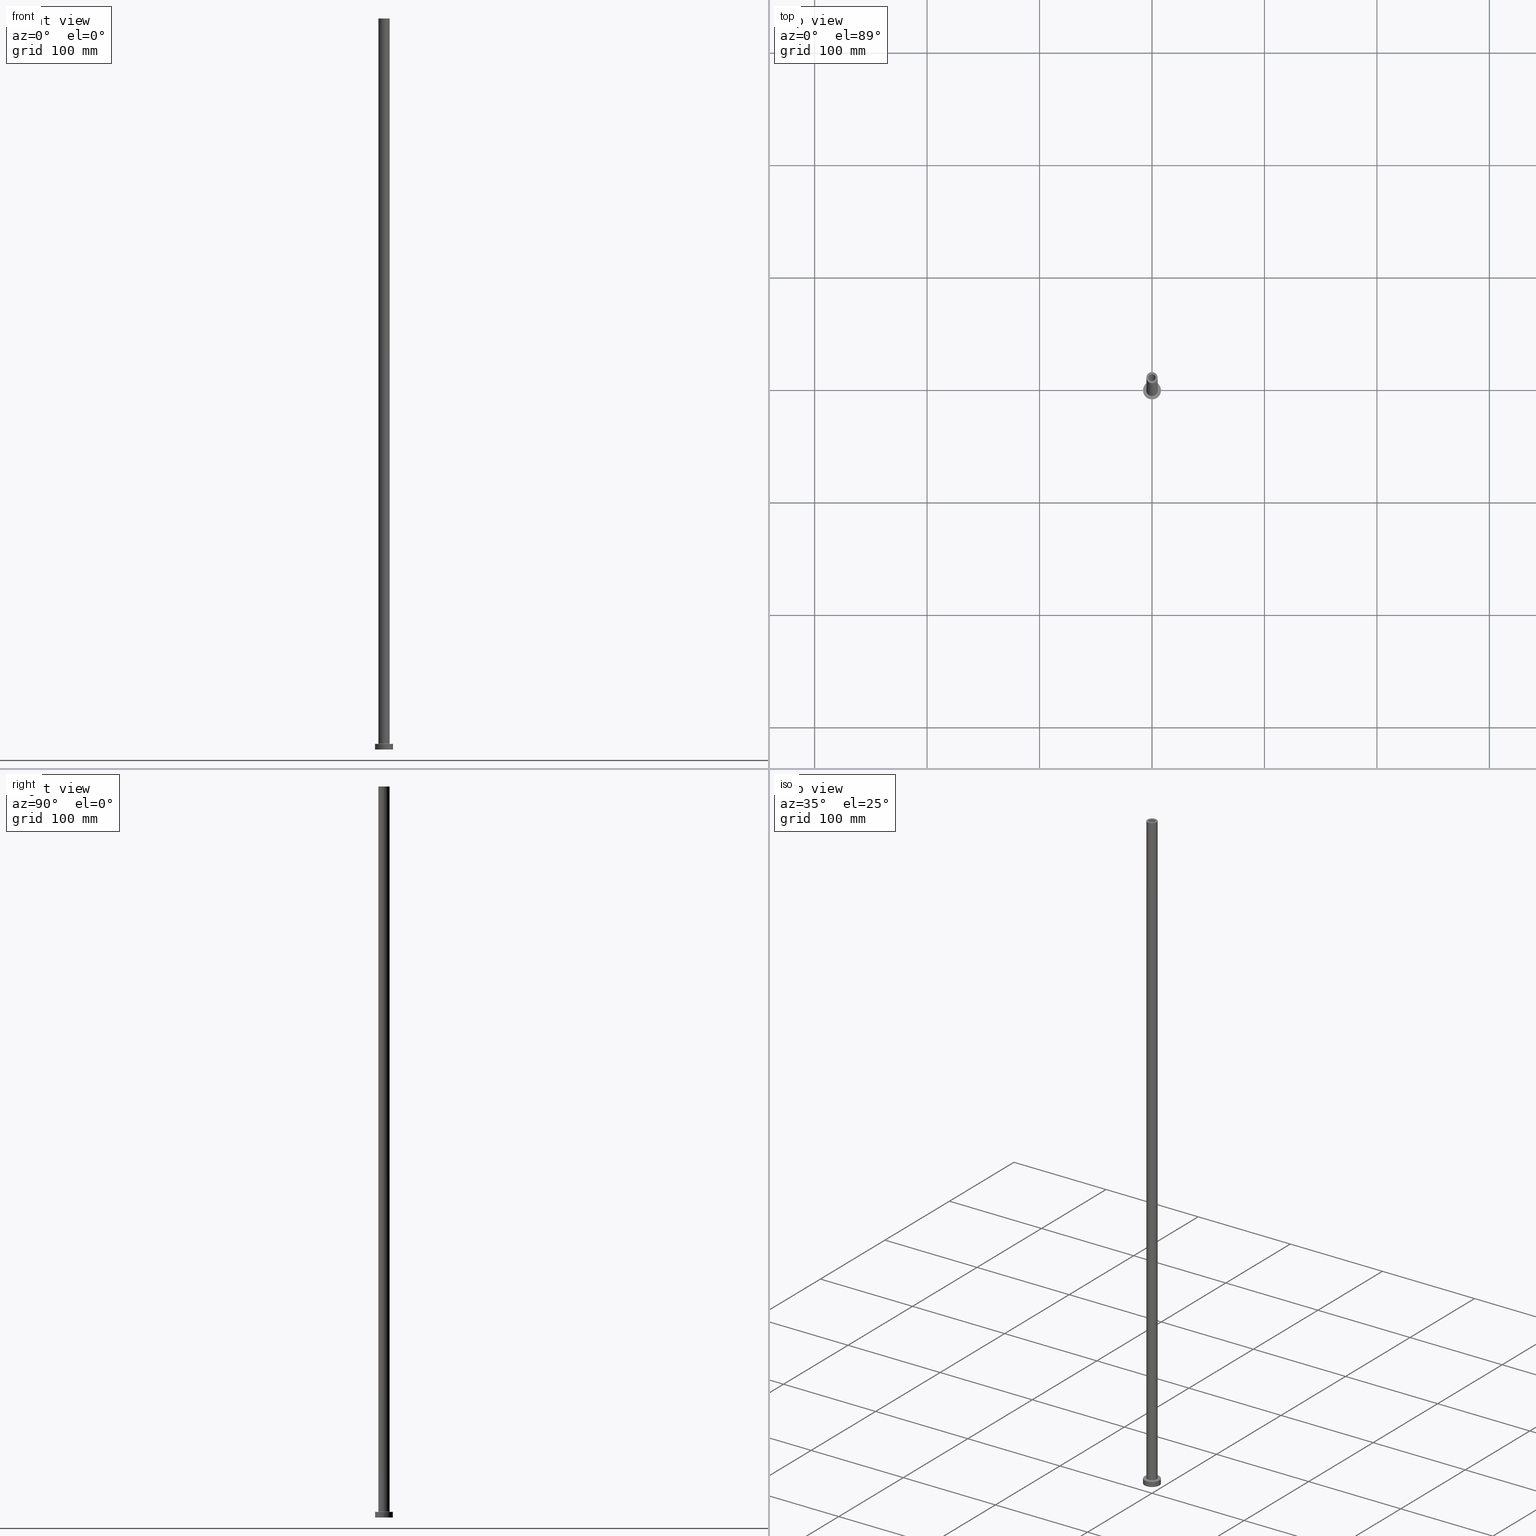
[diagram: canonical four-view strip — front | top / right | iso, engineering-drawing reading convention]
A machine part, canonical four-view strip (front | top / right | iso — engineering-drawing reading convention). The complete STEP part file that produces these views, byte-faithful:
ISO-10303-21;
HEADER;
FILE_DESCRIPTION (( 'STEP AP203' ),
    '1' );
FILE_NAME ('61a7.STEP',
    '2023-02-13T14:29:30',
    ( '' ),
    ( '' ),
    'SwSTEP 2.0',
    'SolidWorks 2019',
    '' );
FILE_SCHEMA (( 'CONFIG_CONTROL_DESIGN' ));
ENDSEC;

DATA;
#1 = DIRECTION ( 'NONE',  ( 0.000000000000000000, 0.000000000000000000, 1.000000000000000000 ) ) ;
#2 = EDGE_LOOP ( 'NONE', ( #14, #389, #76, #284 ) ) ;
#3 = DIRECTION ( 'NONE',  ( 0.000000000000000000, 0.000000000000000000, -1.000000000000000000 ) ) ;
#4 = PERSON_AND_ORGANIZATION_ROLE ( 'classification_officer' ) ;
#5 = CARTESIAN_POINT ( 'NONE',  ( -5.500000000000000000, 6.735557395310442023E-16, 5.499999999999949374 ) ) ;
#6 = AXIS2_PLACEMENT_3D ( 'NONE', #319, #459, #45 ) ;
#7 = CYLINDRICAL_SURFACE ( 'NONE', #134, 3.100000000000000089 ) ;
#8 = VECTOR ( 'NONE', #396, 1000.000000000000000 ) ;
#9 = DIRECTION ( 'NONE',  ( -0.000000000000000000, -0.000000000000000000, -1.000000000000000000 ) ) ;
#10 = ORIENTED_EDGE ( 'NONE', *, *, #185, .F. ) ;
#11 = EDGE_CURVE ( 'NONE', #175, #40, #57, .T. ) ;
#12 = CARTESIAN_POINT ( 'NONE',  ( 0.000000000000000000, 0.000000000000000000, 605.0000000000000000 ) ) ;
#13 = EDGE_CURVE ( 'NONE', #309, #63, #413, .T. ) ;
#14 = ORIENTED_EDGE ( 'NONE', *, *, #41, .F. ) ;
#15 = PRODUCT ( '61a7', '61a7', '', ( #38 ) ) ;
#16 = CARTESIAN_POINT ( 'NONE',  ( 0.000000000000000000, 0.000000000000000000, 5.499999999999949374 ) ) ;
#17 = AXIS2_PLACEMENT_3D ( 'NONE', #112, #296, #397 ) ;
#18 = CC_DESIGN_PERSON_AND_ORGANIZATION_ASSIGNMENT ( #173, #136, ( #73 ) ) ;
#19 = AXIS2_PLACEMENT_3D ( 'NONE', #251, #1, #137 ) ;
#20 = DIRECTION ( 'NONE',  ( 0.000000000000000000, 0.000000000000000000, -1.000000000000000000 ) ) ;
#21 = CC_DESIGN_DATE_AND_TIME_ASSIGNMENT ( #75, #222, ( #95 ) ) ;
#22 = FACE_OUTER_BOUND ( 'NONE', #188, .T. ) ;
#23 = CARTESIAN_POINT ( 'NONE',  ( 0.000000000000000000, 0.000000000000000000, 5.000000000000000000 ) ) ;
#24 = FACE_BOUND ( 'NONE', #64, .T. ) ;
#25 = AXIS2_PLACEMENT_3D ( 'NONE', #5, #370, #437 ) ;
#26 = VERTEX_POINT ( 'NONE', #227 ) ;
#27 = UNCERTAINTY_MEASURE_WITH_UNIT (LENGTH_MEASURE( 1.000000000000000082E-05 ), #108, 'distance_accuracy_value', 'NONE');
#28 = DIRECTION ( 'NONE',  ( 0.000000000000000000, 0.000000000000000000, -1.000000000000000000 ) ) ;
#29 = ORIENTED_EDGE ( 'NONE', *, *, #132, .F. ) ;
#30 = APPLICATION_PROTOCOL_DEFINITION ( 'international standard', 'config_control_design', 1994, #178 ) ;
#31 = VERTEX_POINT ( 'NONE', #118 ) ;
#32 = PERSON_AND_ORGANIZATION ( #306, #236 ) ;
#33 = EDGE_CURVE ( 'NONE', #26, #53, #400, .T. ) ;
#34 = CIRCLE ( 'NONE', #141, 3.100000000000000089 ) ;
#35 = AXIS2_PLACEMENT_3D ( 'NONE', #208, #352, #388 ) ;
#36 = LINE ( 'NONE', #110, #8 ) ;
#37 = EDGE_LOOP ( 'NONE', ( #385, #291 ) ) ;
#38 = MECHANICAL_CONTEXT ( 'NONE', #322, 'mechanical' ) ;
#39 = DIRECTION ( 'NONE',  ( -1.000000000000000000, 0.000000000000000000, 0.000000000000000000 ) ) ;
#40 = VERTEX_POINT ( 'NONE', #409 ) ;
#41 = EDGE_CURVE ( 'NONE', #26, #209, #252, .T. ) ;
#42 = PERSON_AND_ORGANIZATION ( #306, #236 ) ;
#43 = VERTEX_POINT ( 'NONE', #91 ) ;
#44 = CLOSED_SHELL ( 'NONE', ( #267, #460, #398, #78, #234, #101, #74, #181, #149, #449, #371, #335, #182, #211 ) ) ;
#45 = DIRECTION ( 'NONE',  ( -1.000000000000000000, 0.000000000000000000, 0.000000000000000000 ) ) ;
#46 = APPROVAL_STATUS ( 'not_yet_approved' ) ;
#47 = DIRECTION ( 'NONE',  ( 1.000000000000000000, 0.000000000000000000, 0.000000000000000000 ) ) ;
#48 = DATE_AND_TIME ( #151, #351 ) ;
#49 = ORIENTED_EDGE ( 'NONE', *, *, #87, .F. ) ;
#50 = CARTESIAN_POINT ( 'NONE',  ( 0.000000000000000000, 0.000000000000000000, 605.0000000000000000 ) ) ;
#51 = CIRCLE ( 'NONE', #169, 3.250000000000000444 ) ;
#52 = DIRECTION ( 'NONE',  ( 0.000000000000000000, 0.000000000000000000, 1.000000000000000000 ) ) ;
#53 = VERTEX_POINT ( 'NONE', #221 ) ;
#54 = CC_DESIGN_PERSON_AND_ORGANIZATION_ASSIGNMENT ( #113, #458, ( #454 ) ) ;
#55 = CARTESIAN_POINT ( 'NONE',  ( 0.000000000000000000, 0.000000000000000000, 605.0000000000000000 ) ) ;
#56 = EDGE_CURVE ( 'NONE', #40, #175, #189, .T. ) ;
#57 = CIRCLE ( 'NONE', #17, 5.000000000000000000 ) ;
#58 = DIRECTION ( 'NONE',  ( 0.000000000000000000, 0.000000000000000000, 1.000000000000000000 ) ) ;
#59 = DIRECTION ( 'NONE',  ( -0.000000000000000000, -0.000000000000000000, -1.000000000000000000 ) ) ;
#60 = DIRECTION ( 'NONE',  ( 0.000000000000000000, 0.000000000000000000, 1.000000000000000000 ) ) ;
#61 = AXIS2_PLACEMENT_3D ( 'NONE', #363, #9, #156 ) ;
#62 = LINE ( 'NONE', #346, #419 ) ;
#63 = VERTEX_POINT ( 'NONE', #184 ) ;
#64 = EDGE_LOOP ( 'NONE', ( #276, #280 ) ) ;
#65 = APPROVAL_ROLE ( '' ) ;
#66 = ORIENTED_EDGE ( 'NONE', *, *, #233, .T. ) ;
#67 =( NAMED_UNIT ( * ) SI_UNIT ( $, .STERADIAN. ) SOLID_ANGLE_UNIT ( ) );
#68 = CIRCLE ( 'NONE', #358, 8.000000000000000000 ) ;
#69 = LOCAL_TIME ( 15, 29, 30.00000000000000000, #259 ) ;
#70 = PLANE ( 'NONE',  #274 ) ;
#71 = ORIENTED_EDGE ( 'NONE', *, *, #201, .T. ) ;
#72 = PERSON_AND_ORGANIZATION ( #306, #236 ) ;
#73 = PRODUCT_DEFINITION ( 'NEZN�M�', '', #454, #307 ) ;
#74 = ADVANCED_FACE ( 'NONE', ( #24, #297 ), #266, .T. ) ;
#75 = DATE_AND_TIME ( #247, #402 ) ;
#76 = ORIENTED_EDGE ( 'NONE', *, *, #87, .T. ) ;
#77 = APPROVAL_STATUS ( 'not_yet_approved' ) ;
#78 = ADVANCED_FACE ( 'NONE', ( #230 ), #338, .T. ) ;
#79 = CARTESIAN_POINT ( 'NONE',  ( 0.000000000000000000, 0.000000000000000000, 5.000000000000000000 ) ) ;
#80 = CYLINDRICAL_SURFACE ( 'NONE', #299, 3.250000000000000444 ) ;
#81 = ORIENTED_EDGE ( 'NONE', *, *, #100, .T. ) ;
#82 = APPROVAL_PERSON_ORGANIZATION ( #106, #232, #65 ) ;
#83 = CARTESIAN_POINT ( 'NONE',  ( 0.000000000000000000, 0.000000000000000000, 650.0000000000000000 ) ) ;
#84 = VERTEX_POINT ( 'NONE', #97 ) ;
#85 = EDGE_CURVE ( 'NONE', #283, #43, #300, .T. ) ;
#86 = ORIENTED_EDGE ( 'NONE', *, *, #150, .F. ) ;
#87 = EDGE_CURVE ( 'NONE', #53, #139, #199, .T. ) ;
#88 = DIRECTION ( 'NONE',  ( 1.000000000000000000, 0.000000000000000000, 0.000000000000000000 ) ) ;
#89 = ORIENTED_EDGE ( 'NONE', *, *, #298, .F. ) ;
#90 = AXIS2_PLACEMENT_3D ( 'NONE', #368, #52, #438 ) ;
#91 = CARTESIAN_POINT ( 'NONE',  ( -8.000000000000000000, 0.000000000000000000, 0.000000000000000000 ) ) ;
#92 = DIRECTION ( 'NONE',  ( 0.000000000000000000, 0.000000000000000000, 1.000000000000000000 ) ) ;
#93 = CARTESIAN_POINT ( 'NONE',  ( -8.000000000000000000, 0.000000000000000000, 5.000000000000000000 ) ) ;
#94 = AXIS2_PLACEMENT_3D ( 'NONE', #303, #447, #165 ) ;
#95 = SECURITY_CLASSIFICATION ( '', '', #111 ) ;
#96 = DIRECTION ( 'NONE',  ( -0.000000000000000000, -0.000000000000000000, -1.000000000000000000 ) ) ;
#97 = CARTESIAN_POINT ( 'NONE',  ( 5.000000000000000000, 6.123233995736765296E-16, 5.499999999999949374 ) ) ;
#98 = TOROIDAL_SURFACE ( 'NONE', #19, 5.500000000000000000, 0.5000000000000000000 ) ;
#99 = ORIENTED_EDGE ( 'NONE', *, *, #185, .T. ) ;
#100 = EDGE_CURVE ( 'NONE', #349, #31, #272, .T. ) ;
#101 = ADVANCED_FACE ( 'NONE', ( #238 ), #416, .T. ) ;
#102 = ORIENTED_EDGE ( 'NONE', *, *, #210, .F. ) ;
#103 = DATE_AND_TIME ( #422, #445 ) ;
#104 = ORIENTED_EDGE ( 'NONE', *, *, #392, .T. ) ;
#105 = VECTOR ( 'NONE', #96, 1000.000000000000000 ) ;
#106 = PERSON_AND_ORGANIZATION ( #306, #236 ) ;
#107 = AXIS2_PLACEMENT_3D ( 'NONE', #271, #342, #450 ) ;
#108 =( LENGTH_UNIT ( ) NAMED_UNIT ( * ) SI_UNIT ( .MILLI., .METRE. ) );
#109 = ORIENTED_EDGE ( 'NONE', *, *, #176, .F. ) ;
#110 = CARTESIAN_POINT ( 'NONE',  ( -3.250000000000000444, 0.000000000000000000, 614.1923881554251921 ) ) ;
#111 = SECURITY_CLASSIFICATION_LEVEL ( 'unclassified' ) ;
#112 = CARTESIAN_POINT ( 'NONE',  ( 0.000000000000000000, 0.000000000000000000, 650.0000000000000000 ) ) ;
#113 = PERSON_AND_ORGANIZATION ( #306, #236 ) ;
#114 = ORIENTED_EDGE ( 'NONE', *, *, #392, .F. ) ;
#115 = VECTOR ( 'NONE', #375, 1000.000000000000000 ) ;
#116 = CC_DESIGN_APPROVAL ( #399, ( #95 ) ) ;
#117 = FACE_OUTER_BOUND ( 'NONE', #407, .T. ) ;
#118 = CARTESIAN_POINT ( 'NONE',  ( 8.000000000000000000, 9.797174393178825657E-16, 0.000000000000000000 ) ) ;
#119 = FACE_OUTER_BOUND ( 'NONE', #223, .T. ) ;
#120 = CARTESIAN_POINT ( 'NONE',  ( 0.000000000000000000, 0.000000000000000000, 0.000000000000000000 ) ) ;
#121 = ORIENTED_EDGE ( 'NONE', *, *, #233, .F. ) ;
#122 = DIRECTION ( 'NONE',  ( 0.000000000000000000, 0.000000000000000000, -1.000000000000000000 ) ) ;
#123 = CIRCLE ( 'NONE', #61, 5.500000000000000000 ) ;
#124 = CC_DESIGN_APPROVAL ( #282, ( #73 ) ) ;
#125 = DIRECTION ( 'NONE',  ( -0.000000000000000000, -0.000000000000000000, -1.000000000000000000 ) ) ;
#126 = DIRECTION ( 'NONE',  ( -1.000000000000000000, 0.000000000000000000, 0.000000000000000000 ) ) ;
#127 = FACE_OUTER_BOUND ( 'NONE', #255, .T. ) ;
#128 = CARTESIAN_POINT ( 'NONE',  ( 0.000000000000000000, 0.000000000000000000, 5.499999999999949374 ) ) ;
#129 = AXIS2_PLACEMENT_3D ( 'NONE', #441, #408, #229 ) ;
#130 = DIRECTION ( 'NONE',  ( 1.000000000000000000, 0.000000000000000000, 0.000000000000000000 ) ) ;
#131 = ORIENTED_EDGE ( 'NONE', *, *, #249, .T. ) ;
#132 = EDGE_CURVE ( 'NONE', #349, #283, #68, .T. ) ;
#133 = PLANE ( 'NONE',  #207 ) ;
#134 = AXIS2_PLACEMENT_3D ( 'NONE', #83, #226, #155 ) ;
#135 = ORIENTED_EDGE ( 'NONE', *, *, #278, .T. ) ;
#136 = PERSON_AND_ORGANIZATION_ROLE ( 'creator' ) ;
#137 = DIRECTION ( 'NONE',  ( 1.000000000000000000, 0.000000000000000000, 0.000000000000000000 ) ) ;
#138 = ORIENTED_EDGE ( 'NONE', *, *, #364, .T. ) ;
#139 = VERTEX_POINT ( 'NONE', #268 ) ;
#140 =( NAMED_UNIT ( * ) PLANE_ANGLE_UNIT ( ) SI_UNIT ( $, .RADIAN. ) );
#141 = AXIS2_PLACEMENT_3D ( 'NONE', #55, #197, #166 ) ;
#142 = VECTOR ( 'NONE', #28, 1000.000000000000000 ) ;
#143 = PERSON_AND_ORGANIZATION ( #306, #236 ) ;
#144 = ORIENTED_EDGE ( 'NONE', *, *, #298, .T. ) ;
#145 = DIRECTION ( 'NONE',  ( 0.000000000000000000, 0.000000000000000000, 1.000000000000000000 ) ) ;
#146 = CARTESIAN_POINT ( 'NONE',  ( 5.500000000000000000, 0.000000000000000000, 4.999999999999975131 ) ) ;
#147 = ORIENTED_EDGE ( 'NONE', *, *, #417, .T. ) ;
#148 = APPROVAL_DATE_TIME ( #362, #232 ) ;
#149 = ADVANCED_FACE ( 'NONE', ( #127 ), #194, .T. ) ;
#150 = EDGE_CURVE ( 'NONE', #139, #209, #34, .T. ) ;
#151 = CALENDAR_DATE ( 2023, 13, 2 ) ;
#152 = ORIENTED_EDGE ( 'NONE', *, *, #249, .F. ) ;
#153 = CIRCLE ( 'NONE', #220, 5.500000000000000000 ) ;
#154 = APPROVAL_PERSON_ORGANIZATION ( #32, #282, #316 ) ;
#155 = DIRECTION ( 'NONE',  ( -1.000000000000000000, 0.000000000000000000, 0.000000000000000000 ) ) ;
#156 = DIRECTION ( 'NONE',  ( 1.000000000000000000, 0.000000000000000000, 0.000000000000000000 ) ) ;
#157 = ORIENTED_EDGE ( 'NONE', *, *, #347, .T. ) ;
#158 = DIRECTION ( 'NONE',  ( 1.000000000000000000, 0.000000000000000000, 0.000000000000000000 ) ) ;
#159 = DIRECTION ( 'NONE',  ( 0.000000000000000000, 0.000000000000000000, 1.000000000000000000 ) ) ;
#160 = ORIENTED_EDGE ( 'NONE', *, *, #294, .T. ) ;
#161 = CARTESIAN_POINT ( 'NONE',  ( 5.500000000000000000, 0.000000000000000000, 5.499999999999949374 ) ) ;
#162 = DIRECTION ( 'NONE',  ( 0.000000000000000000, 0.000000000000000000, 1.000000000000000000 ) ) ;
#163 = AXIS2_PLACEMENT_3D ( 'NONE', #50, #250, #218 ) ;
#164 = CIRCLE ( 'NONE', #172, 3.100000000000000089 ) ;
#165 = DIRECTION ( 'NONE',  ( -1.000000000000000000, 0.000000000000000000, 0.000000000000000000 ) ) ;
#166 = DIRECTION ( 'NONE',  ( 1.000000000000000000, 0.000000000000000000, 0.000000000000000000 ) ) ;
#167 = DIRECTION ( 'NONE',  ( 1.000000000000000000, 0.000000000000000000, 0.000000000000000000 ) ) ;
#168 = CARTESIAN_POINT ( 'NONE',  ( 0.000000000000000000, 0.000000000000000000, 5.000000000000000000 ) ) ;
#169 = AXIS2_PLACEMENT_3D ( 'NONE', #254, #401, #256 ) ;
#170 = ORIENTED_EDGE ( 'NONE', *, *, #13, .T. ) ;
#171 = ORIENTED_EDGE ( 'NONE', *, *, #56, .T. ) ;
#172 = AXIS2_PLACEMENT_3D ( 'NONE', #302, #60, #130 ) ;
#173 = PERSON_AND_ORGANIZATION ( #306, #236 ) ;
#174 = FACE_BOUND ( 'NONE', #394, .T. ) ;
#175 = VERTEX_POINT ( 'NONE', #301 ) ;
#176 = EDGE_CURVE ( 'NONE', #175, #309, #269, .T. ) ;
#177 = ORIENTED_EDGE ( 'NONE', *, *, #430, .F. ) ;
#178 = APPLICATION_CONTEXT ( 'configuration controlled 3d designs of mechanical parts and assemblies' ) ;
#179 = AXIS2_PLACEMENT_3D ( 'NONE', #12, #293, #359 ) ;
#180 = ORIENTED_EDGE ( 'NONE', *, *, #343, .F. ) ;
#181 = ADVANCED_FACE ( 'NONE', ( #237, #378 ), #133, .F. ) ;
#182 = ADVANCED_FACE ( 'NONE', ( #288, #260 ), #333, .F. ) ;
#183 = APPROVAL_ROLE ( '' ) ;
#184 = CARTESIAN_POINT ( 'NONE',  ( -5.500000000000000000, 6.735557395310442023E-16, 4.999999999999975131 ) ) ;
#185 = EDGE_CURVE ( 'NONE', #328, #323, #51, .T. ) ;
#186 = ORIENTED_EDGE ( 'NONE', *, *, #219, .T. ) ;
#187 = DIRECTION ( 'NONE',  ( 1.000000000000000000, 0.000000000000000000, 0.000000000000000000 ) ) ;
#188 = EDGE_LOOP ( 'NONE', ( #262, #131, #193, #241 ) ) ;
#189 = CIRCLE ( 'NONE', #312, 5.000000000000000000 ) ;
#190 = CIRCLE ( 'NONE', #107, 3.250000000000000444 ) ;
#191 = DIRECTION ( 'NONE',  ( 1.000000000000000000, 0.000000000000000000, -0.000000000000000000 ) ) ;
#192 = CARTESIAN_POINT ( 'NONE',  ( 0.000000000000000000, 0.000000000000000000, 605.0000000000000000 ) ) ;
#193 = ORIENTED_EDGE ( 'NONE', *, *, #430, .T. ) ;
#194 = CYLINDRICAL_SURFACE ( 'NONE', #202, 5.000000000000000000 ) ;
#195 = CARTESIAN_POINT ( 'NONE',  ( -8.000000000000000000, 0.000000000000000000, 5.000000000000000000 ) ) ;
#196 = MANIFOLD_SOLID_BREP ( 'Odebrat vysunut�m4', #44 ) ;
#197 = DIRECTION ( 'NONE',  ( 0.000000000000000000, 0.000000000000000000, 1.000000000000000000 ) ) ;
#198 = CIRCLE ( 'NONE', #90, 3.100000000000000089 ) ;
#199 = LINE ( 'NONE', #340, #448 ) ;
#200 = DIRECTION ( 'NONE',  ( 1.000000000000000000, 0.000000000000000000, 0.000000000000000000 ) ) ;
#201 = EDGE_CURVE ( 'NONE', #283, #349, #418, .T. ) ;
#202 = AXIS2_PLACEMENT_3D ( 'NONE', #411, #446, #126 ) ;
#203 = CARTESIAN_POINT ( 'NONE',  ( 3.250000000000000444, 3.980102097228898231E-16, 614.1923881554251921 ) ) ;
#204 = ORIENTED_EDGE ( 'NONE', *, *, #201, .F. ) ;
#205 = VERTEX_POINT ( 'NONE', #427 ) ;
#206 = DIRECTION ( 'NONE',  ( 0.000000000000000000, 0.000000000000000000, 1.000000000000000000 ) ) ;
#207 = AXIS2_PLACEMENT_3D ( 'NONE', #348, #159, #191 ) ;
#208 = CARTESIAN_POINT ( 'NONE',  ( 0.000000000000000000, 0.000000000000000000, 5.499999999999949374 ) ) ;
#209 = VERTEX_POINT ( 'NONE', #393 ) ;
#210 = EDGE_CURVE ( 'NONE', #429, #63, #153, .T. ) ;
#211 = ADVANCED_FACE ( 'NONE', ( #246 ), #7, .F. ) ;
#212 = DIRECTION ( 'NONE',  ( 0.000000000000000000, 0.000000000000000000, 1.000000000000000000 ) ) ;
#213 = ORIENTED_EDGE ( 'NONE', *, *, #132, .T. ) ;
#214 = APPROVAL_STATUS ( 'not_yet_approved' ) ;
#215 = DIRECTION ( 'NONE',  ( 0.000000000000000000, 0.000000000000000000, -1.000000000000000000 ) ) ;
#216 = PERSON_AND_ORGANIZATION_ROLE ( 'design_owner' ) ;
#217 = CC_DESIGN_PERSON_AND_ORGANIZATION_ASSIGNMENT ( #72, #216, ( #15 ) ) ;
#218 = DIRECTION ( 'NONE',  ( 1.000000000000000000, 0.000000000000000000, -0.000000000000000000 ) ) ;
#219 = EDGE_CURVE ( 'NONE', #205, #451, #339, .T. ) ;
#220 = AXIS2_PLACEMENT_3D ( 'NONE', #79, #329, #88 ) ;
#221 = CARTESIAN_POINT ( 'NONE',  ( -3.100000000000000089, 0.000000000000000000, 650.0000000000000000 ) ) ;
#222 = DATE_TIME_ROLE ( 'classification_date' ) ;
#223 = EDGE_LOOP ( 'NONE', ( #29, #81, #160, #424 ) ) ;
#224 = SHAPE_DEFINITION_REPRESENTATION ( #265, #373 ) ;
#225 = CARTESIAN_POINT ( 'NONE',  ( 3.100000000000000089, 3.796405077356794918E-16, 650.0000000000000000 ) ) ;
#226 = DIRECTION ( 'NONE',  ( 0.000000000000000000, 0.000000000000000000, -1.000000000000000000 ) ) ;
#227 = CARTESIAN_POINT ( 'NONE',  ( 3.100000000000000089, 3.796405077356794918E-16, 650.0000000000000000 ) ) ;
#228 = AXIS2_PLACEMENT_3D ( 'NONE', #192, #289, #435 ) ;
#229 = DIRECTION ( 'NONE',  ( 1.000000000000000000, 0.000000000000000000, 0.000000000000000000 ) ) ;
#230 = FACE_OUTER_BOUND ( 'NONE', #456, .T. ) ;
#231 = DIRECTION ( 'NONE',  ( 1.000000000000000000, 0.000000000000000000, -0.000000000000000000 ) ) ;
#232 = APPROVAL ( #214, 'NEUR�EN�' ) ;
#233 = EDGE_CURVE ( 'NONE', #53, #26, #198, .T. ) ;
#234 = ADVANCED_FACE ( 'NONE', ( #119 ), #395, .T. ) ;
#235 = AXIS2_PLACEMENT_3D ( 'NONE', #414, #59, #336 ) ;
#236 = ORGANIZATION ( 'NEUR�EN�', 'NEUR�EN�', '' ) ;
#237 = FACE_BOUND ( 'NONE', #245, .T. ) ;
#238 = FACE_OUTER_BOUND ( 'NONE', #287, .T. ) ;
#239 = DIRECTION ( 'NONE',  ( 0.000000000000000000, 0.000000000000000000, -1.000000000000000000 ) ) ;
#240 = EDGE_LOOP ( 'NONE', ( #353, #326, #144, #365 ) ) ;
#241 = ORIENTED_EDGE ( 'NONE', *, *, #343, .T. ) ;
#242 = FACE_OUTER_BOUND ( 'NONE', #315, .T. ) ;
#243 = VECTOR ( 'NONE', #125, 1000.000000000000000 ) ;
#244 = CARTESIAN_POINT ( 'NONE',  ( 3.250000000000000444, 3.980102097228898231E-16, 605.0000000000000000 ) ) ;
#245 = EDGE_LOOP ( 'NONE', ( #180, #10 ) ) ;
#246 = FACE_OUTER_BOUND ( 'NONE', #2, .T. ) ;
#247 = CALENDAR_DATE ( 2023, 13, 2 ) ;
#248 = ORIENTED_EDGE ( 'NONE', *, *, #11, .F. ) ;
#249 = EDGE_CURVE ( 'NONE', #451, #205, #281, .T. ) ;
#250 = DIRECTION ( 'NONE',  ( 0.000000000000000000, 0.000000000000000000, 1.000000000000000000 ) ) ;
#251 = CARTESIAN_POINT ( 'NONE',  ( 0.000000000000000000, 0.000000000000000000, 5.499999999999949374 ) ) ;
#252 = LINE ( 'NONE', #225, #444 ) ;
#253 = EDGE_CURVE ( 'NONE', #63, #429, #123, .T. ) ;
#254 = CARTESIAN_POINT ( 'NONE',  ( 0.000000000000000000, 0.000000000000000000, 0.000000000000000000 ) ) ;
#255 = EDGE_LOOP ( 'NONE', ( #114, #248, #428, #355 ) ) ;
#256 = DIRECTION ( 'NONE',  ( 1.000000000000000000, 0.000000000000000000, 0.000000000000000000 ) ) ;
#257 = CARTESIAN_POINT ( 'NONE',  ( 0.000000000000000000, 0.000000000000000000, 650.0000000000000000 ) ) ;
#258 = DIRECTION ( 'NONE',  ( 0.000000000000000000, 0.000000000000000000, 1.000000000000000000 ) ) ;
#259 = COORDINATED_UNIVERSAL_TIME_OFFSET ( 1, 0, .AHEAD. ) ;
#260 = FACE_OUTER_BOUND ( 'NONE', #391, .T. ) ;
#261 = EDGE_LOOP ( 'NONE', ( #186, #138, #99, #177 ) ) ;
#262 = ORIENTED_EDGE ( 'NONE', *, *, #364, .F. ) ;
#263 = AXIS2_PLACEMENT_3D ( 'NONE', #120, #367, #158 ) ;
#264 = DIRECTION ( 'NONE',  ( 0.000000000000000000, 0.000000000000000000, -1.000000000000000000 ) ) ;
#265 = PRODUCT_DEFINITION_SHAPE ( 'NONE', 'NONE',  #73 ) ;
#266 = PLANE ( 'NONE',  #369 ) ;
#267 = ADVANCED_FACE ( 'NONE', ( #117 ), #327, .F. ) ;
#268 = CARTESIAN_POINT ( 'NONE',  ( -3.100000000000000089, 0.000000000000000000, 605.0000000000000000 ) ) ;
#269 = LINE ( 'NONE', #412, #105 ) ;
#270 = AXIS2_PLACEMENT_3D ( 'NONE', #161, #443, #264 ) ;
#271 = CARTESIAN_POINT ( 'NONE',  ( 0.000000000000000000, 0.000000000000000000, 0.000000000000000000 ) ) ;
#272 = LINE ( 'NONE', #372, #243 ) ;
#273 = ORIENTED_EDGE ( 'NONE', *, *, #33, .F. ) ;
#274 = AXIS2_PLACEMENT_3D ( 'NONE', #286, #212, #279 ) ;
#275 = CARTESIAN_POINT ( 'NONE',  ( 3.250000000000000444, 3.980102097228898231E-16, 0.000000000000000000 ) ) ;
#276 = ORIENTED_EDGE ( 'NONE', *, *, #210, .T. ) ;
#277 = COORDINATED_UNIVERSAL_TIME_OFFSET ( 1, 0, .AHEAD. ) ;
#278 = EDGE_CURVE ( 'NONE', #43, #31, #453, .T. ) ;
#279 = DIRECTION ( 'NONE',  ( 1.000000000000000000, 0.000000000000000000, -0.000000000000000000 ) ) ;
#280 = ORIENTED_EDGE ( 'NONE', *, *, #253, .T. ) ;
#281 = CIRCLE ( 'NONE', #228, 3.250000000000000444 ) ;
#282 = APPROVAL ( #77, 'NEUR�EN�' ) ;
#283 = VERTEX_POINT ( 'NONE', #195 ) ;
#284 = ORIENTED_EDGE ( 'NONE', *, *, #347, .F. ) ;
#285 = CALENDAR_DATE ( 2023, 13, 2 ) ;
#286 = CARTESIAN_POINT ( 'NONE',  ( 0.000000000000000000, 0.000000000000000000, 650.0000000000000000 ) ) ;
#287 = EDGE_LOOP ( 'NONE', ( #423, #204, #356, #135 ) ) ;
#288 = FACE_BOUND ( 'NONE', #432, .T. ) ;
#289 = DIRECTION ( 'NONE',  ( 0.000000000000000000, 0.000000000000000000, 1.000000000000000000 ) ) ;
#290 = AXIS2_PLACEMENT_3D ( 'NONE', #406, #145, #187 ) ;
#291 = ORIENTED_EDGE ( 'NONE', *, *, #294, .F. ) ;
#292 = LOCAL_TIME ( 15, 29, 30.00000000000000000, #357 ) ;
#293 = DIRECTION ( 'NONE',  ( 0.000000000000000000, 0.000000000000000000, 1.000000000000000000 ) ) ;
#294 = EDGE_CURVE ( 'NONE', #31, #43, #376, .T. ) ;
#295 = ORIENTED_EDGE ( 'NONE', *, *, #219, .F. ) ;
#296 = DIRECTION ( 'NONE',  ( 0.000000000000000000, 0.000000000000000000, 1.000000000000000000 ) ) ;
#297 = FACE_OUTER_BOUND ( 'NONE', #387, .T. ) ;
#298 = EDGE_CURVE ( 'NONE', #84, #429, #318, .T. ) ;
#299 = AXIS2_PLACEMENT_3D ( 'NONE', #354, #215, #39 ) ;
#300 = LINE ( 'NONE', #93, #115 ) ;
#301 = CARTESIAN_POINT ( 'NONE',  ( -5.000000000000000000, 0.000000000000000000, 650.0000000000000000 ) ) ;
#302 = CARTESIAN_POINT ( 'NONE',  ( 0.000000000000000000, 0.000000000000000000, 605.0000000000000000 ) ) ;
#303 = CARTESIAN_POINT ( 'NONE',  ( 0.000000000000000000, 0.000000000000000000, 5.000000000000000000 ) ) ;
#304 = AXIS2_PLACEMENT_3D ( 'NONE', #257, #3, #439 ) ;
#305 =( GEOMETRIC_REPRESENTATION_CONTEXT ( 3 ) GLOBAL_UNCERTAINTY_ASSIGNED_CONTEXT ( ( #27 ) ) GLOBAL_UNIT_ASSIGNED_CONTEXT ( ( #108, #140, #67 ) ) REPRESENTATION_CONTEXT ( 'NONE', 'WORKASPACE' ) );
#306 = PERSON ( 'NEUR�EN�', 'NEUR�EN�', 'NEUR�EN�', ('NEUR�EN�'), ('NEUR�EN�'), ('NEUR�EN�') ) ;
#307 = DESIGN_CONTEXT ( 'detailed design', #178, 'design' ) ;
#308 = CC_DESIGN_DATE_AND_TIME_ASSIGNMENT ( #103, #425, ( #73 ) ) ;
#309 = VERTEX_POINT ( 'NONE', #410 ) ;
#310 = CALENDAR_DATE ( 2023, 13, 2 ) ;
#311 = PRODUCT_RELATED_PRODUCT_CATEGORY ( 'detail', '', ( #15 ) ) ;
#312 = AXIS2_PLACEMENT_3D ( 'NONE', #366, #361, #47 ) ;
#313 = AXIS2_PLACEMENT_3D ( 'NONE', #314, #206, #350 ) ;
#314 = CARTESIAN_POINT ( 'NONE',  ( 0.000000000000000000, 0.000000000000000000, 0.000000000000000000 ) ) ;
#315 = EDGE_LOOP ( 'NONE', ( #331, #170, #102, #89 ) ) ;
#316 = APPROVAL_ROLE ( '' ) ;
#317 = APPLICATION_PROTOCOL_DEFINITION ( 'international standard', 'config_control_design', 1994, #322 ) ;
#318 = CIRCLE ( 'NONE', #270, 0.5000000000000004441 ) ;
#319 = CARTESIAN_POINT ( 'NONE',  ( 0.000000000000000000, 0.000000000000000000, 5.000000000000000000 ) ) ;
#320 = AXIS2_PLACEMENT_3D ( 'NONE', #128, #58, #200 ) ;
#321 = PERSON_AND_ORGANIZATION_ROLE ( 'creator' ) ;
#322 = APPLICATION_CONTEXT ( 'configuration controlled 3d designs of mechanical parts and assemblies' ) ;
#323 = VERTEX_POINT ( 'NONE', #337 ) ;
#324 = EDGE_CURVE ( 'NONE', #309, #84, #345, .T. ) ;
#325 = COORDINATED_UNIVERSAL_TIME_OFFSET ( 1, 0, .AHEAD. ) ;
#326 = ORIENTED_EDGE ( 'NONE', *, *, #417, .F. ) ;
#327 = CYLINDRICAL_SURFACE ( 'NONE', #304, 3.100000000000000089 ) ;
#328 = VERTEX_POINT ( 'NONE', #275 ) ;
#329 = DIRECTION ( 'NONE',  ( -0.000000000000000000, -0.000000000000000000, -1.000000000000000000 ) ) ;
#330 = AXIS2_PLACEMENT_3D ( 'NONE', #16, #162, #167 ) ;
#331 = ORIENTED_EDGE ( 'NONE', *, *, #324, .F. ) ;
#332 = CC_DESIGN_APPROVAL ( #232, ( #454 ) ) ;
#333 = PLANE ( 'NONE',  #163 ) ;
#334 = ORIENTED_EDGE ( 'NONE', *, *, #56, .F. ) ;
#335 = ADVANCED_FACE ( 'NONE', ( #22 ), #420, .F. ) ;
#336 = DIRECTION ( 'NONE',  ( -1.000000000000000000, 0.000000000000000000, 0.000000000000000000 ) ) ;
#337 = CARTESIAN_POINT ( 'NONE',  ( -3.250000000000000444, 0.000000000000000000, 0.000000000000000000 ) ) ;
#338 = CYLINDRICAL_SURFACE ( 'NONE', #235, 5.000000000000000000 ) ;
#339 = CIRCLE ( 'NONE', #179, 3.250000000000000444 ) ;
#340 = CARTESIAN_POINT ( 'NONE',  ( -3.100000000000000089, 0.000000000000000000, 650.0000000000000000 ) ) ;
#341 = DIRECTION ( 'NONE',  ( 1.000000000000000000, 0.000000000000000000, 0.000000000000000000 ) ) ;
#342 = DIRECTION ( 'NONE',  ( -0.000000000000000000, -0.000000000000000000, -1.000000000000000000 ) ) ;
#343 = EDGE_CURVE ( 'NONE', #323, #328, #190, .T. ) ;
#344 = CARTESIAN_POINT ( 'NONE',  ( 0.000000000000000000, 0.000000000000000000, 614.1923881554251921 ) ) ;
#345 = CIRCLE ( 'NONE', #330, 5.000000000000000000 ) ;
#346 = CARTESIAN_POINT ( 'NONE',  ( 5.000000000000000000, 6.123233995736765296E-16, 650.0000000000000000 ) ) ;
#347 = EDGE_CURVE ( 'NONE', #209, #139, #164, .T. ) ;
#348 = CARTESIAN_POINT ( 'NONE',  ( 0.000000000000000000, 0.000000000000000000, 0.000000000000000000 ) ) ;
#349 = VERTEX_POINT ( 'NONE', #379 ) ;
#350 = DIRECTION ( 'NONE',  ( 1.000000000000000000, 0.000000000000000000, 0.000000000000000000 ) ) ;
#351 = LOCAL_TIME ( 15, 29, 30.00000000000000000, #325 ) ;
#352 = DIRECTION ( 'NONE',  ( 0.000000000000000000, 0.000000000000000000, 1.000000000000000000 ) ) ;
#353 = ORIENTED_EDGE ( 'NONE', *, *, #13, .F. ) ;
#354 = CARTESIAN_POINT ( 'NONE',  ( 0.000000000000000000, 0.000000000000000000, 614.1923881554251921 ) ) ;
#355 = ORIENTED_EDGE ( 'NONE', *, *, #324, .T. ) ;
#356 = ORIENTED_EDGE ( 'NONE', *, *, #85, .T. ) ;
#357 = COORDINATED_UNIVERSAL_TIME_OFFSET ( 1, 0, .AHEAD. ) ;
#358 = AXIS2_PLACEMENT_3D ( 'NONE', #168, #374, #341 ) ;
#359 = DIRECTION ( 'NONE',  ( 1.000000000000000000, 0.000000000000000000, 0.000000000000000000 ) ) ;
#360 = COORDINATED_UNIVERSAL_TIME_OFFSET ( 1, 0, .AHEAD. ) ;
#361 = DIRECTION ( 'NONE',  ( 0.000000000000000000, 0.000000000000000000, 1.000000000000000000 ) ) ;
#362 = DATE_AND_TIME ( #285, #69 ) ;
#363 = CARTESIAN_POINT ( 'NONE',  ( 0.000000000000000000, 0.000000000000000000, 5.000000000000000000 ) ) ;
#364 = EDGE_CURVE ( 'NONE', #451, #328, #380, .T. ) ;
#365 = ORIENTED_EDGE ( 'NONE', *, *, #253, .F. ) ;
#366 = CARTESIAN_POINT ( 'NONE',  ( 0.000000000000000000, 0.000000000000000000, 650.0000000000000000 ) ) ;
#367 = DIRECTION ( 'NONE',  ( 0.000000000000000000, 0.000000000000000000, 1.000000000000000000 ) ) ;
#368 = CARTESIAN_POINT ( 'NONE',  ( 0.000000000000000000, 0.000000000000000000, 650.0000000000000000 ) ) ;
#369 = AXIS2_PLACEMENT_3D ( 'NONE', #23, #92, #231 ) ;
#370 = DIRECTION ( 'NONE',  ( 1.224646799147353207E-16, 1.000000000000000000, -0.000000000000000000 ) ) ;
#371 = ADVANCED_FACE ( 'NONE', ( #415 ), #426, .F. ) ;
#372 = CARTESIAN_POINT ( 'NONE',  ( 8.000000000000000000, 9.797174393178825657E-16, 5.000000000000000000 ) ) ;
#373 = ADVANCED_BREP_SHAPE_REPRESENTATION ( '61a7', ( #196, #313 ), #305 ) ;
#374 = DIRECTION ( 'NONE',  ( 0.000000000000000000, 0.000000000000000000, 1.000000000000000000 ) ) ;
#375 = DIRECTION ( 'NONE',  ( -0.000000000000000000, -0.000000000000000000, -1.000000000000000000 ) ) ;
#376 = CIRCLE ( 'NONE', #129, 8.000000000000000000 ) ;
#377 = APPROVAL_PERSON_ORGANIZATION ( #42, #399, #183 ) ;
#378 = FACE_OUTER_BOUND ( 'NONE', #37, .T. ) ;
#379 = CARTESIAN_POINT ( 'NONE',  ( 8.000000000000000000, 9.797174393178825657E-16, 5.000000000000000000 ) ) ;
#380 = LINE ( 'NONE', #203, #142 ) ;
#381 = AXIS2_PLACEMENT_3D ( 'NONE', #344, #239, #384 ) ;
#382 = CC_DESIGN_SECURITY_CLASSIFICATION ( #95, ( #454 ) ) ;
#383 = CC_DESIGN_PERSON_AND_ORGANIZATION_ASSIGNMENT ( #436, #321, ( #454 ) ) ;
#384 = DIRECTION ( 'NONE',  ( -1.000000000000000000, 0.000000000000000000, 0.000000000000000000 ) ) ;
#385 = ORIENTED_EDGE ( 'NONE', *, *, #278, .F. ) ;
#386 = DIRECTION ( 'NONE',  ( -0.000000000000000000, -0.000000000000000000, -1.000000000000000000 ) ) ;
#387 = EDGE_LOOP ( 'NONE', ( #71, #213 ) ) ;
#388 = DIRECTION ( 'NONE',  ( 1.000000000000000000, 0.000000000000000000, 0.000000000000000000 ) ) ;
#389 = ORIENTED_EDGE ( 'NONE', *, *, #33, .T. ) ;
#390 = FACE_OUTER_BOUND ( 'NONE', #261, .T. ) ;
#391 = EDGE_LOOP ( 'NONE', ( #295, #152 ) ) ;
#392 = EDGE_CURVE ( 'NONE', #40, #84, #62, .T. ) ;
#393 = CARTESIAN_POINT ( 'NONE',  ( 3.100000000000000089, 3.796405077356794918E-16, 605.0000000000000000 ) ) ;
#394 = EDGE_LOOP ( 'NONE', ( #121, #273 ) ) ;
#395 = CYLINDRICAL_SURFACE ( 'NONE', #6, 8.000000000000000000 ) ;
#396 = DIRECTION ( 'NONE',  ( 0.000000000000000000, 0.000000000000000000, -1.000000000000000000 ) ) ;
#397 = DIRECTION ( 'NONE',  ( 1.000000000000000000, 0.000000000000000000, 0.000000000000000000 ) ) ;
#398 = ADVANCED_FACE ( 'NONE', ( #242 ), #98, .F. ) ;
#399 = APPROVAL ( #46, 'NEUR�EN�' ) ;
#400 = CIRCLE ( 'NONE', #433, 3.100000000000000089 ) ;
#401 = DIRECTION ( 'NONE',  ( -0.000000000000000000, -0.000000000000000000, -1.000000000000000000 ) ) ;
#402 = LOCAL_TIME ( 15, 29, 30.00000000000000000, #360 ) ;
#403 = ORIENTED_EDGE ( 'NONE', *, *, #11, .T. ) ;
#404 = APPROVAL_DATE_TIME ( #48, #399 ) ;
#405 = DIRECTION ( 'NONE',  ( 1.000000000000000000, 0.000000000000000000, 0.000000000000000000 ) ) ;
#406 = CARTESIAN_POINT ( 'NONE',  ( 0.000000000000000000, 0.000000000000000000, 5.000000000000000000 ) ) ;
#407 = EDGE_LOOP ( 'NONE', ( #66, #461, #86, #49 ) ) ;
#408 = DIRECTION ( 'NONE',  ( 0.000000000000000000, 0.000000000000000000, 1.000000000000000000 ) ) ;
#409 = CARTESIAN_POINT ( 'NONE',  ( 5.000000000000000000, 6.123233995736765296E-16, 650.0000000000000000 ) ) ;
#410 = CARTESIAN_POINT ( 'NONE',  ( -5.000000000000000000, 0.000000000000000000, 5.499999999999949374 ) ) ;
#411 = CARTESIAN_POINT ( 'NONE',  ( 0.000000000000000000, 0.000000000000000000, 650.0000000000000000 ) ) ;
#412 = CARTESIAN_POINT ( 'NONE',  ( -5.000000000000000000, 0.000000000000000000, 650.0000000000000000 ) ) ;
#413 = CIRCLE ( 'NONE', #25, 0.5000000000000004441 ) ;
#414 = CARTESIAN_POINT ( 'NONE',  ( 0.000000000000000000, 0.000000000000000000, 650.0000000000000000 ) ) ;
#415 = FACE_OUTER_BOUND ( 'NONE', #240, .T. ) ;
#416 = CYLINDRICAL_SURFACE ( 'NONE', #94, 8.000000000000000000 ) ;
#417 = EDGE_CURVE ( 'NONE', #84, #309, #434, .T. ) ;
#418 = CIRCLE ( 'NONE', #290, 8.000000000000000000 ) ;
#419 = VECTOR ( 'NONE', #386, 1000.000000000000000 ) ;
#420 = CYLINDRICAL_SURFACE ( 'NONE', #381, 3.250000000000000444 ) ;
#421 = EDGE_LOOP ( 'NONE', ( #403, #171 ) ) ;
#422 = CALENDAR_DATE ( 2023, 13, 2 ) ;
#423 = ORIENTED_EDGE ( 'NONE', *, *, #100, .F. ) ;
#424 = ORIENTED_EDGE ( 'NONE', *, *, #85, .F. ) ;
#425 = DATE_TIME_ROLE ( 'creation_date' ) ;
#426 = TOROIDAL_SURFACE ( 'NONE', #320, 5.500000000000000000, 0.5000000000000000000 ) ;
#427 = CARTESIAN_POINT ( 'NONE',  ( -3.250000000000000444, 0.000000000000000000, 605.0000000000000000 ) ) ;
#428 = ORIENTED_EDGE ( 'NONE', *, *, #176, .T. ) ;
#429 = VERTEX_POINT ( 'NONE', #146 ) ;
#430 = EDGE_CURVE ( 'NONE', #205, #323, #36, .T. ) ;
#431 = CC_DESIGN_PERSON_AND_ORGANIZATION_ASSIGNMENT ( #143, #4, ( #95 ) ) ;
#432 = EDGE_LOOP ( 'NONE', ( #440, #157 ) ) ;
#433 = AXIS2_PLACEMENT_3D ( 'NONE', #442, #258, #405 ) ;
#434 = CIRCLE ( 'NONE', #35, 5.000000000000000000 ) ;
#435 = DIRECTION ( 'NONE',  ( 1.000000000000000000, 0.000000000000000000, 0.000000000000000000 ) ) ;
#436 = PERSON_AND_ORGANIZATION ( #306, #236 ) ;
#437 = DIRECTION ( 'NONE',  ( -1.000000000000000000, 1.224646799147351482E-16, 0.000000000000000000 ) ) ;
#438 = DIRECTION ( 'NONE',  ( 1.000000000000000000, 0.000000000000000000, 0.000000000000000000 ) ) ;
#439 = DIRECTION ( 'NONE',  ( -1.000000000000000000, 0.000000000000000000, 0.000000000000000000 ) ) ;
#440 = ORIENTED_EDGE ( 'NONE', *, *, #150, .T. ) ;
#441 = CARTESIAN_POINT ( 'NONE',  ( 0.000000000000000000, 0.000000000000000000, 0.000000000000000000 ) ) ;
#442 = CARTESIAN_POINT ( 'NONE',  ( 0.000000000000000000, 0.000000000000000000, 650.0000000000000000 ) ) ;
#443 = DIRECTION ( 'NONE',  ( 0.000000000000000000, -1.000000000000000000, 0.000000000000000000 ) ) ;
#444 = VECTOR ( 'NONE', #122, 1000.000000000000000 ) ;
#445 = LOCAL_TIME ( 15, 29, 30.00000000000000000, #277 ) ;
#446 = DIRECTION ( 'NONE',  ( -0.000000000000000000, -0.000000000000000000, -1.000000000000000000 ) ) ;
#447 = DIRECTION ( 'NONE',  ( -0.000000000000000000, -0.000000000000000000, -1.000000000000000000 ) ) ;
#448 = VECTOR ( 'NONE', #20, 1000.000000000000000 ) ;
#449 = ADVANCED_FACE ( 'NONE', ( #174, #455 ), #70, .T. ) ;
#450 = DIRECTION ( 'NONE',  ( 1.000000000000000000, 0.000000000000000000, 0.000000000000000000 ) ) ;
#451 = VERTEX_POINT ( 'NONE', #244 ) ;
#452 = APPROVAL_DATE_TIME ( #457, #282 ) ;
#453 = CIRCLE ( 'NONE', #263, 8.000000000000000000 ) ;
#454 = PRODUCT_DEFINITION_FORMATION_WITH_SPECIFIED_SOURCE ( 'LIBOVOLN�', '', #15, .NOT_KNOWN. ) ;
#455 = FACE_OUTER_BOUND ( 'NONE', #421, .T. ) ;
#456 = EDGE_LOOP ( 'NONE', ( #334, #104, #147, #109 ) ) ;
#457 = DATE_AND_TIME ( #310, #292 ) ;
#458 = PERSON_AND_ORGANIZATION_ROLE ( 'design_supplier' ) ;
#459 = DIRECTION ( 'NONE',  ( -0.000000000000000000, -0.000000000000000000, -1.000000000000000000 ) ) ;
#460 = ADVANCED_FACE ( 'NONE', ( #390 ), #80, .F. ) ;
#461 = ORIENTED_EDGE ( 'NONE', *, *, #41, .T. ) ;
ENDSEC;
END-ISO-10303-21;
